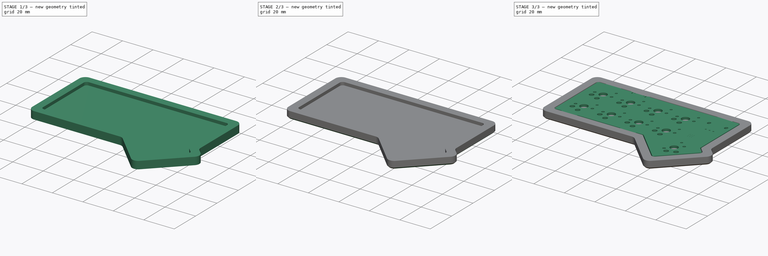
[diagram: build sequence overview — one tinted view per stage of 3, left to right]
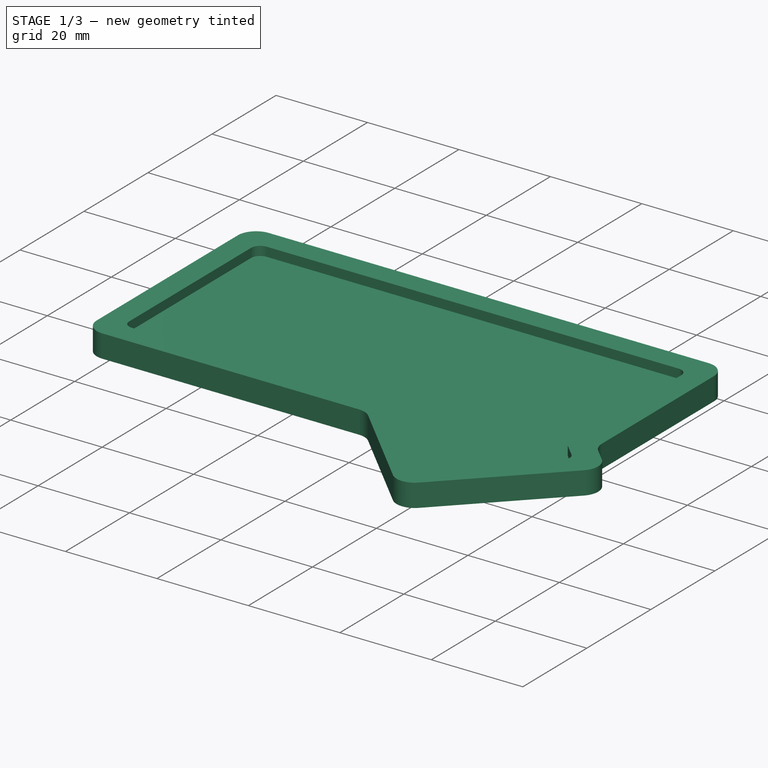
[diagram: stage 1 of 3 — iso view after this stage's code; geometry added in this stage tinted green]
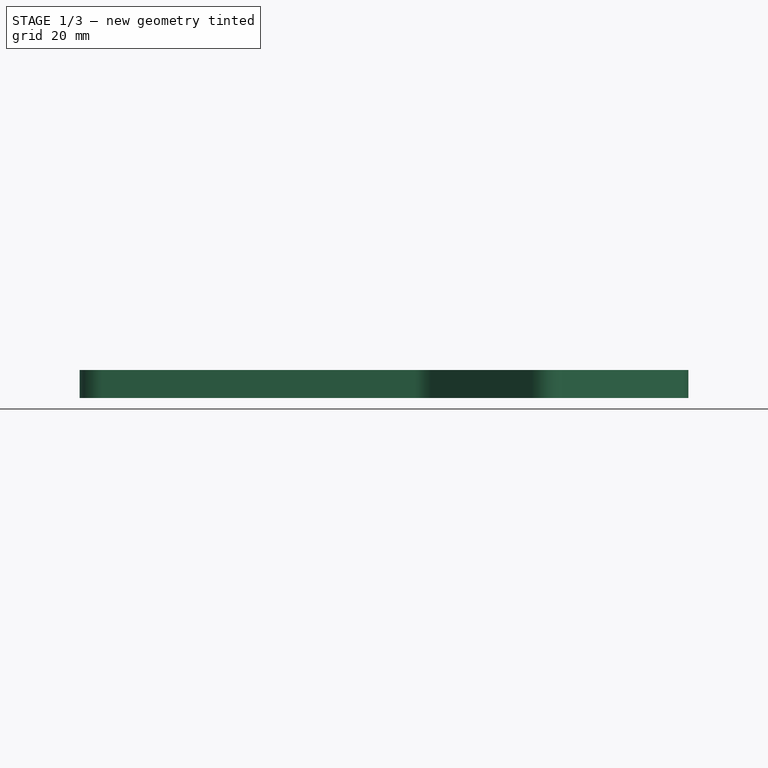
[diagram: stage 1 of 3 — front view after this stage's code; geometry added in this stage tinted green]
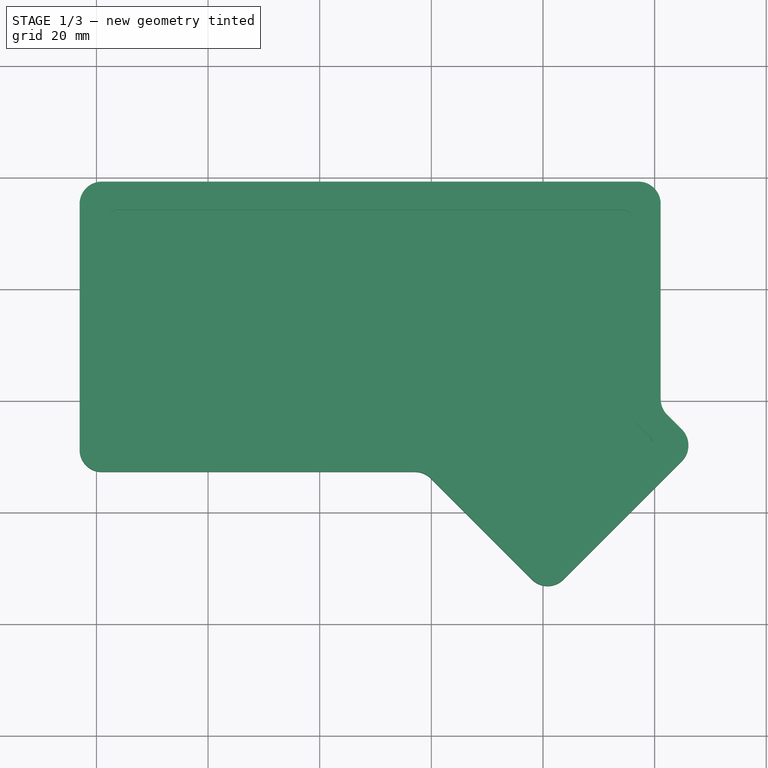
[diagram: stage 1 of 3 — top view after this stage's code; geometry added in this stage tinted green]
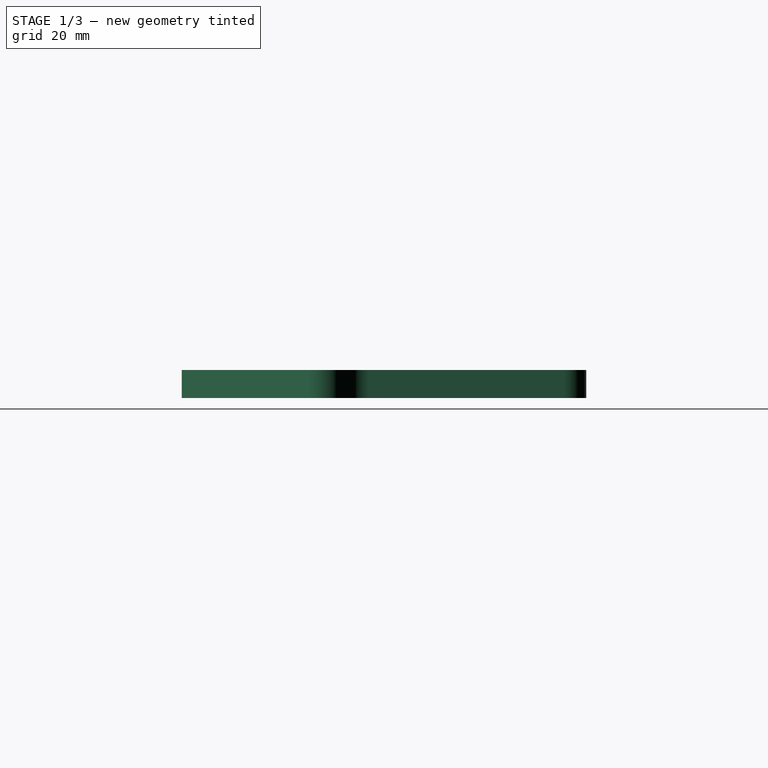
[diagram: stage 1 of 3 — right view after this stage's code; geometry added in this stage tinted green]
FCSTD DOCUMENT  (FreeCAD 0.21R33771 (Git))
Label: 3d
License: All rights reserved
LicenseURL: http://en.wikipedia.org/wiki/All_rights_reserved
objects: App::Link×19, Part::Feature×9, Sketcher::SketchObject×5, App::Part×4, PartDesign::Pad×4, PartDesign::Body×2, PartDesign::CoordinateSystem×1, PartDesign::Chamfer×1
note: 27 computed .brp shape members not serialized (recipe doc carries the construction recipe); baked Part::Feature solids carry a one-line shape summary decoded from their .brp

FEATURE [PartDesign::Body] Body
  Group = -> [Sketch,Pad,Sketch001,Pad001]
  Origin = -> Origin007
  Tip = -> Pad001
FEATURE [App::Part] Board_f0d5  label="main"
  Group = -> [Local_CS_f0d5,Board_Geoms_f0d5,Step_Models_f0d5,Body]
  Origin = -> Origin001
FEATURE [Sketcher::SketchObject] Sketch002
  FullyConstrained = true
  MapMode = 5
  Support = -> [XY_Plane008]
  sketch-geometry (32):
    g0: LineSegment StartX=14.0884 StartY=34.2536 StartZ=0 EndX=-76.0159 EndY=34.2536 EndZ=0
    g1: LineSegment StartX=-78.0159 StartY=32.2536 StartZ=0 EndX=-78.0159 EndY=-5.74598 EndZ=0
    g2: LineSegment StartX=-76.0159 StartY=-7.74598 StartZ=0 EndX=-20.0159 EndY=-7.74598 EndZ=0
    g3: LineSegment StartX=-18.6017 StartY=-8.33177 StartZ=0 EndX=-0.570487 EndY=-26.363 EndZ=0
    g4: LineSegment StartX=2.25794 StartY=-26.363 StartZ=0 EndX=19.2285 EndY=-9.39243 EndZ=0
    g5: LineSegment StartX=19.2285 StartY=-6.564 StartZ=0 EndX=16.6742 EndY=-4.00969 EndZ=0
    g6: LineSegment StartX=16.0884 StartY=-2.59548 StartZ=0 EndX=16.0884 EndY=32.2536 EndZ=0
    g7: LineSegment StartX=17.0884 StartY=39.2536 StartZ=0 EndX=-79.0159 EndY=39.2536 EndZ=0
    g8: LineSegment StartX=-83.0159 StartY=35.2536 StartZ=0 EndX=-83.0159 EndY=-8.74598 EndZ=0
    g9: LineSegment StartX=-79.0159 StartY=-12.746 StartZ=0 EndX=-22.9154 EndY=-12.746 EndZ=0
    g10: LineSegment StartX=-20.087 StartY=-13.9176 StartZ=0 EndX=-1.9847 EndY=-32.0198 EndZ=0
    g11: LineSegment StartX=3.67215 StartY=-32.0198 StartZ=0 EndX=24.8854 EndY=-10.8066 EndZ=0
    g12: LineSegment StartX=24.8854 StartY=-5.14979 StartZ=0 EndX=22.26 EndY=-2.52441 EndZ=0
    g13: LineSegment StartX=21.0884 StartY=0.304015 StartZ=0 EndX=21.0884 EndY=35.2536 EndZ=0
    g14: GeomPoint X=15.0882 Y=33.7536 Z=0
    g15: ArcOfCircle CenterX=14.0884 CenterY=32.2536 CenterZ=0 NormalX=0 NormalY=0 NormalZ=1 AngleXU=0 Radius=2 StartAngle=0 EndAngle=1.5708
    g16: ArcOfCircle CenterX=17.0884 CenterY=35.2536 CenterZ=0 NormalX=0 NormalY=0 NormalZ=1 AngleXU=0 Radius=4 StartAngle=5e-16 EndAngle=1.5708
    g17: GeomPoint X=15.5884 Y=33.254 Z=0
    g18: ArcOfCircle CenterX=-79.0159 CenterY=35.2536 CenterZ=0 NormalX=0 NormalY=0 NormalZ=1 AngleXU=0 Radius=4 StartAngle=1.5708 EndAngle=3.14159
    g19: ArcOfCircle CenterX=-79.0159 CenterY=-8.74598 CenterZ=0 NormalX=0 NormalY=0 NormalZ=1 AngleXU=0 Radius=4 StartAngle=3.14159 EndAngle=4.71239
    g20: ArcOfCircle CenterX=0.843727 CenterY=-29.1914 CenterZ=0 NormalX=0 NormalY=0 NormalZ=1 AngleXU=0 Radius=4 StartAngle=3.92699 EndAngle=5.49779
    g21: ArcOfCircle CenterX=22.0569 CenterY=-7.97822 CenterZ=0 NormalX=0 NormalY=0 NormalZ=1 AngleXU=0 Radius=4 StartAngle=5.49779 EndAngle=7.06858
    g22: ArcOfCircle CenterX=25.0884 CenterY=0.304015 CenterZ=0 NormalX=0 NormalY=0 NormalZ=1 AngleXU=0 Radius=4 StartAngle=3.14159 EndAngle=3.92699
    g23: ArcOfCircle CenterX=-22.9154 CenterY=-16.746 CenterZ=0 NormalX=0 NormalY=0 NormalZ=1 AngleXU=0 Radius=4 StartAngle=0.785398 EndAngle=1.5708
    g24: ArcOfCircle CenterX=-76.0159 CenterY=32.2536 CenterZ=0 NormalX=0 NormalY=0 NormalZ=1 AngleXU=0 Radius=2 StartAngle=1.5708 EndAngle=3.14159
    g25: GeomPoint X=-77.5159 Y=33.257 Z=0
    g26: ArcOfCircle CenterX=-76.0159 CenterY=-5.74598 CenterZ=0 NormalX=0 NormalY=0 NormalZ=1 AngleXU=0 Radius=2 StartAngle=3.14159 EndAngle=4.71239
    g27: GeomPoint X=-77.0185 Y=-7.24598 Z=0
    g28: ArcOfCircle CenterX=-20.0159 CenterY=-9.74598 CenterZ=0 NormalX=0 NormalY=0 NormalZ=1 AngleXU=0 Radius=2 StartAngle=0.785398 EndAngle=1.5708
    g29: ArcOfCircle CenterX=0.843727 CenterY=-24.9488 CenterZ=0 NormalX=0 NormalY=0 NormalZ=1 AngleXU=0 Radius=2 StartAngle=3.92699 EndAngle=5.49779
    g30: ArcOfCircle CenterX=17.8143 CenterY=-7.97822 CenterZ=0 NormalX=0 NormalY=0 NormalZ=1 AngleXU=0 Radius=2 StartAngle=5.49779 EndAngle=7.06858
    g31: ArcOfCircle CenterX=18.0884 CenterY=-2.59548 CenterZ=0 NormalX=0 NormalY=0 NormalZ=1 AngleXU=0 Radius=2 StartAngle=3.14159 EndAngle=3.92699
  constraints (78):
    c: Horizontal(g0)
    c: Vertical(g1)
    c: Horizontal(g2)
    c: Vertical(g6)
    c: Horizontal(g7)
    c: Vertical(g8)
    c: Horizontal(g9)
    c: Parallel(g13,g6)
    c: Parallel(g12,g5)
    c: Parallel(g4,g11)
    c: Parallel(g10,g3)
    c: Angle(g12,g13) = 2.35619
    c: Perpendicular(g5,g4)
    c: Perpendicular(g3,g4)
    c: DistanceX(g14) = 15.0882
    c: DistanceY(g14) = 33.7536
    c: Distance(g14,g0) = 0.5
    c: Tangent(g0,g15) = -1.5708
    c: Tangent(g6,g15) = -1.5708
    c: Radius(g15) = 2
    c: Tangent(g7,g16) = -1.5708
    c: Tangent(g13,g16) = -1.5708
    c: Radius(g16) = 4
    c: Distance(g0,g7) = 5
    c: DistanceX(g17) = 15.5884
    c: DistanceY(g17) = 33.254
    c: Distance(g17,g6) = 0.5
    c: Distance(g6,g13) = 5
    c: Tangent(g7,g18) = -1.5708
    c: Tangent(g8,g18) = -1.5708
    c: Tangent(g8,g19) = -1.5708
    c: Tangent(g9,g19) = -1.5708
    c: Tangent(g10,g20) = -1.5708
    c: Tangent(g11,g20) = -1.5708
    c: Tangent(g11,g21) = -1.5708
    c: Tangent(g12,g21) = -1.5708
    c: Radius(g18) = 4
    c: Radius(g19) = 4
    c: Radius(g20) = 4
    c: Radius(g21) = 4
    c: Tangent(g12,g22) = 1.5708
    c: Tangent(g13,g22) = 1.5708
    c: Tangent(g9,g23) = 1.5708
    c: Tangent(g10,g23) = 1.5708
    c: Radius(g22) = 4
    c: Radius(g23) = 4
    c: Tangent(g0,g24) = -1.5708
    c: Tangent(g1,g24) = -1.5708
    c: Radius(g24) = 2
    c: Distance(g1,g8) = 5
    c: DistanceX(g25) = -77.5159
    c: DistanceY(g25) = 33.257
    c: Distance(g25,g1) = 0.5
    c: Tangent(g1,g26) = -1.5708
    c: Tangent(g2,g26) = -1.5708
    c: Radius(g26) = 2
    c: Distance(g2,g9) = 5
    c: DistanceX(g27) = -77.0185
    c: DistanceY(g27) = -7.24598
    c: Distance(g27,g2) = 0.5
    c: Tangent(g2,g28) = 1.5708
    c: Tangent(g3,g28) = 1.5708
    c: Radius(g28) = 2
    c: Tangent(g3,g29) = -1.5708
    c: Tangent(g4,g29) = -1.5708
    c: Tangent(g4,g30) = -1.5708
    c: Tangent(g5,g30) = -1.5708
    c: Tangent(g5,g31) = 1.5708
    c: Tangent(g6,g31) = 1.5708
    c: Radius(g31) = 2
    c: Radius(g30) = 2
    c: Radius(g29) = 2
    c: Distance(g3,g10) = 5
    c: Distance(g5,g12) = 5
    c: Distance(g4,g11) = 5
    c: Distance(g2) = 56
    c: Distance(g3) = 25.5
    c: Distance(g4) = 24
FEATURE [PartDesign::Pad] Pad002
  Direction = (0,0,1)
  Length = 2
  Length2 = 10
  Profile = -> Sketch002
  ReferenceAxis = -> Sketch002 [N_Axis]
  Reversed = true
  Type = 0
FEATURE [Sketcher::SketchObject] Sketch003
  ExternalGeometry = -> [Pad002]
  FullyConstrained = true
  MapMode = 5
  Placement = pos=(0,0,-2) rot=(1,0,0;3.14159rad)
  Support = -> [Pad002]
  sketch-geometry (14):
    g0: LineSegment StartX=-79.0159 StartY=12.746 StartZ=0 EndX=-22.9154 EndY=12.746 EndZ=0
    g1: LineSegment StartX=-20.087 StartY=13.9176 StartZ=0 EndX=-1.9847 EndY=32.0198 EndZ=0
    g2: LineSegment StartX=3.67215 StartY=32.0198 StartZ=0 EndX=24.8854 EndY=10.8066 EndZ=0
    g3: LineSegment StartX=24.8854 StartY=5.14979 StartZ=0 EndX=22.26 EndY=2.52441 EndZ=0
    g4: LineSegment StartX=21.0884 StartY=-0.304015 StartZ=0 EndX=21.0884 EndY=-35.2536 EndZ=0
    g5: LineSegment StartX=17.0884 StartY=-39.2536 StartZ=0 EndX=-79.0159 EndY=-39.2536 EndZ=0
    g6: LineSegment StartX=-83.0159 StartY=-35.2536 StartZ=0 EndX=-83.0159 EndY=8.74598 EndZ=0
    g7: ArcOfCircle CenterX=-79.0159 CenterY=8.74598 CenterZ=0 NormalX=0 NormalY=0 NormalZ=1 AngleXU=0 Radius=4 StartAngle=1.5708 EndAngle=3.14159
    g8: ArcOfCircle CenterX=-79.0159 CenterY=-35.2536 CenterZ=0 NormalX=0 NormalY=0 NormalZ=1 AngleXU=0 Radius=4 StartAngle=3.14159 EndAngle=4.71239
    g9: ArcOfCircle CenterX=17.0884 CenterY=-35.2536 CenterZ=0 NormalX=0 NormalY=0 NormalZ=1 AngleXU=0 Radius=4 StartAngle=4.71239 EndAngle=6.28319
    g10: ArcOfCircle CenterX=25.0884 CenterY=-0.304015 CenterZ=0 NormalX=0 NormalY=0 NormalZ=1 AngleXU=0 Radius=4 StartAngle=2.35619 EndAngle=3.14159
    g11: ArcOfCircle CenterX=22.0569 CenterY=7.97822 CenterZ=0 NormalX=0 NormalY=0 NormalZ=1 AngleXU=0 Radius=4 StartAngle=5.49779 EndAngle=7.06858
    g12: ArcOfCircle CenterX=0.843727 CenterY=29.1914 CenterZ=0 NormalX=0 NormalY=0 NormalZ=1 AngleXU=0 Radius=4 StartAngle=0.785398 EndAngle=2.35619
    g13: ArcOfCircle CenterX=-22.9154 CenterY=16.746 CenterZ=0 NormalX=0 NormalY=0 NormalZ=1 AngleXU=0 Radius=4 StartAngle=4.71239 EndAngle=5.49779
  constraints (29):
    c: Horizontal(g0)
    c: Vertical(g4)
    c: Horizontal(g5)
    c: Vertical(g6)
    c: Tangent(g0,g7) = 1.5708
    c: Tangent(g6,g7) = 1.5708
    c: Tangent(g5,g8) = 1.5708
    c: Tangent(g6,g8) = 1.5708
    c: Tangent(g4,g9) = 1.5708
    c: Tangent(g5,g9) = 1.5708
    c: Tangent(g3,g10) = -1.5708
    c: Tangent(g4,g10) = -1.5708
    c: Tangent(g2,g11) = 1.5708
    c: Tangent(g3,g11) = 1.5708
    c: Tangent(g1,g12) = 1.5708
    c: Tangent(g2,g12) = 1.5708
    c: Tangent(g0,g13) = -1.5708
    c: Tangent(g1,g13) = -1.5708
    c: Radius(g13) = 4
    c: Radius(g7) = 4
    c: Radius(g9) = 4
    c: Radius(g10) = 4
    c: Radius(g11) = 4
    c: Coincident(g3,g-9)
    c: Coincident(g-9,g3)
    c: Coincident(g2,g-3)
    c: Coincident(g1,g-4)
    c: Coincident(g6,g-6)
    c: Coincident(g5,g-7)
FEATURE [PartDesign::Pad] Pad003
  BaseFeature = -> Pad002
  Direction = (0,0,-1)
  Length = 3
  Length2 = 10
  Profile = -> Sketch003
  ReferenceAxis = -> Sketch003 [N_Axis]
  Type = 0
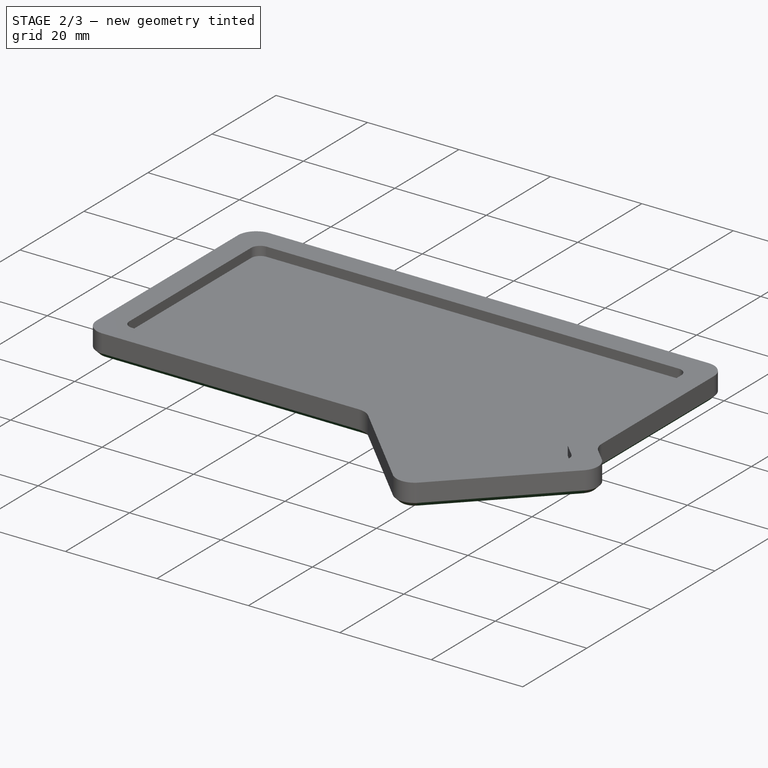
[diagram: stage 2 of 3 — iso view after this stage's code; geometry added in this stage tinted green]
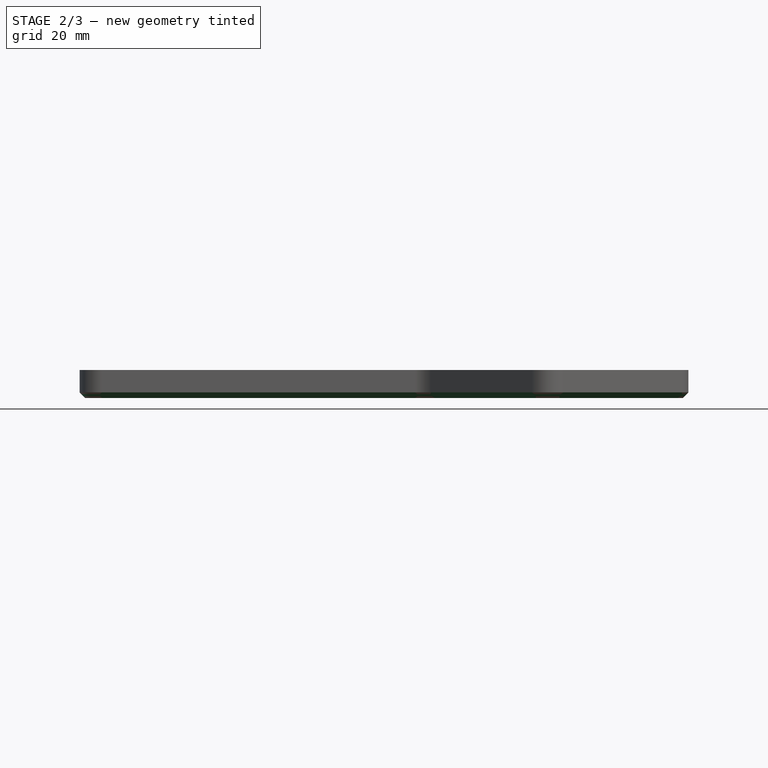
[diagram: stage 2 of 3 — front view after this stage's code; geometry added in this stage tinted green]
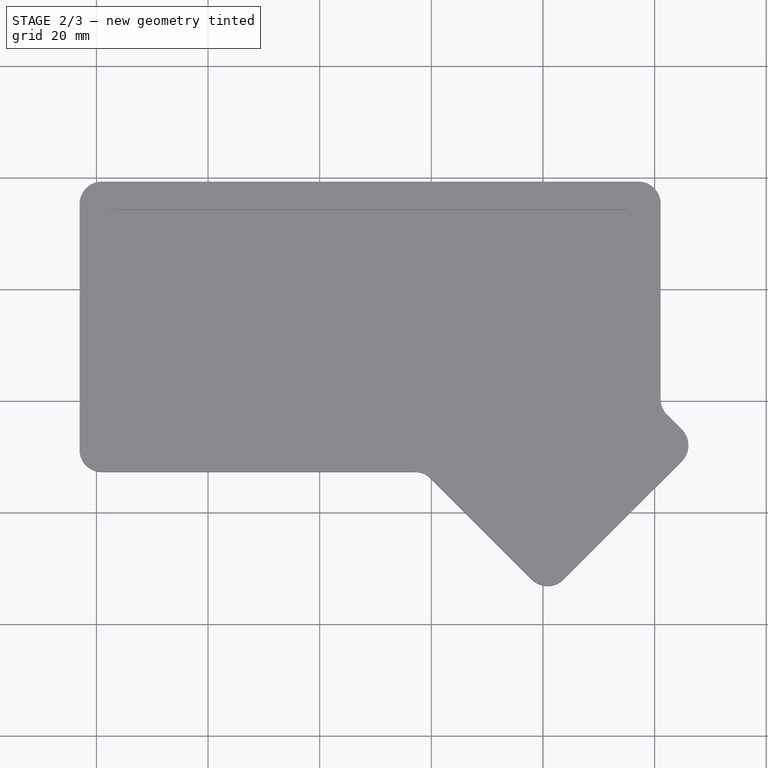
[diagram: stage 2 of 3 — top view after this stage's code; geometry added in this stage tinted green]
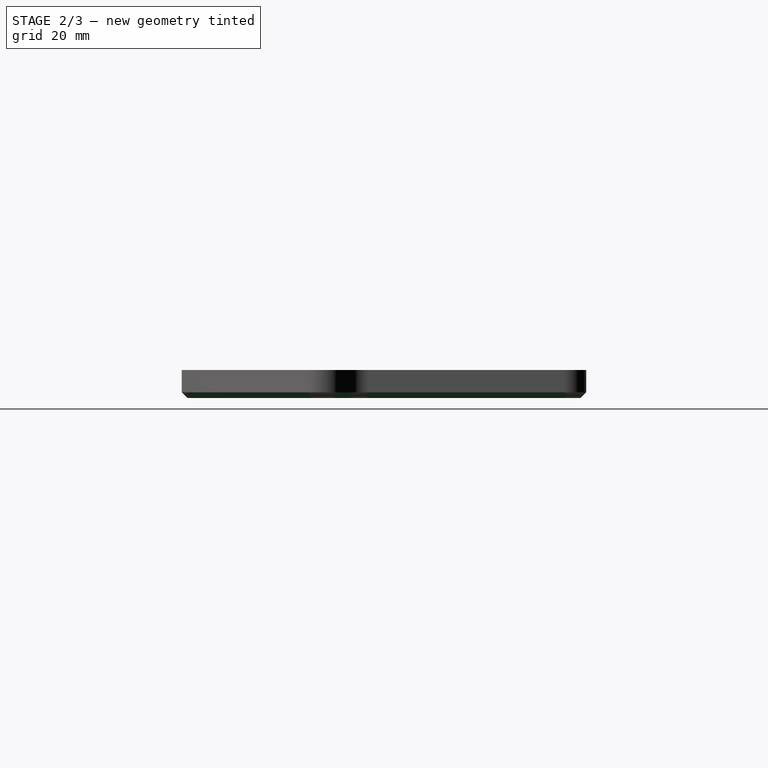
[diagram: stage 2 of 3 — right view after this stage's code; geometry added in this stage tinted green]
FEATURE [PartDesign::Chamfer] Chamfer
  Angle = 45
  Base = -> Pad003 [Face33]
  BaseFeature = -> Pad003
  ChamferType = 0
  FlipDirection = false
  Size = 1
  Size2 = 1
  SupportTransform = false
  UseAllEdges = false
FEATURE [PartDesign::Body] Body001
  Group = -> [Sketch002,Pad002,Sketch003,Pad003,Chamfer]
  Origin = -> Origin008
  Placement = pos=(0,0,-2.6) rot=(0,0,1;0rad)
  Tip = -> Chamfer
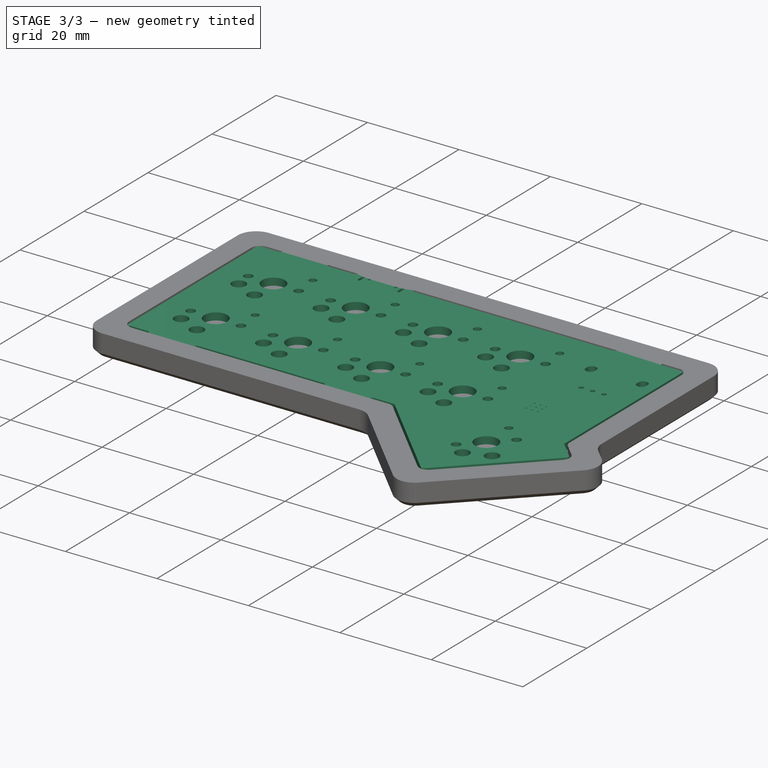
[diagram: stage 3 of 3 — iso view after this stage's code; geometry added in this stage tinted green]
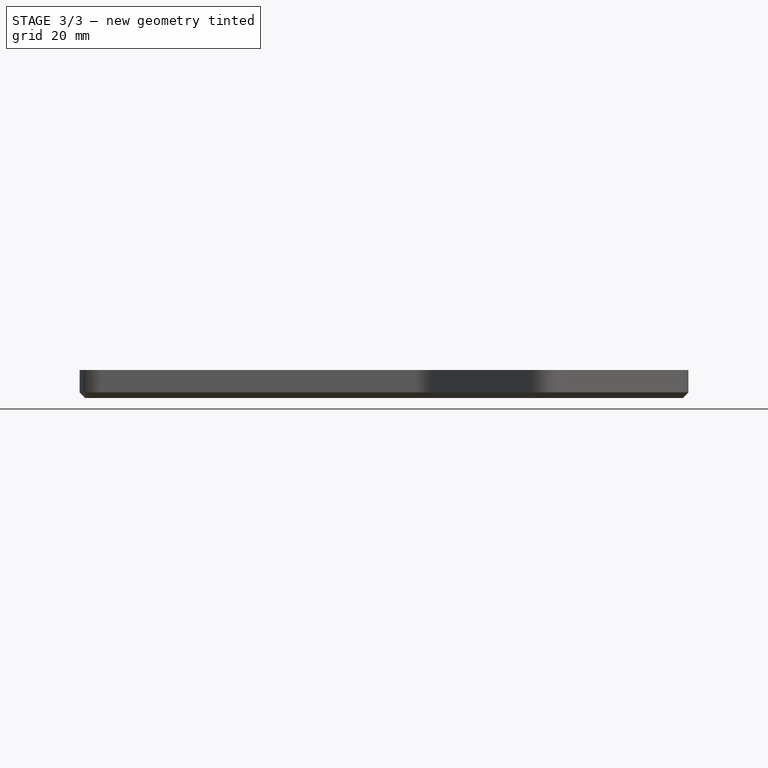
[diagram: stage 3 of 3 — front view after this stage's code; geometry added in this stage tinted green]
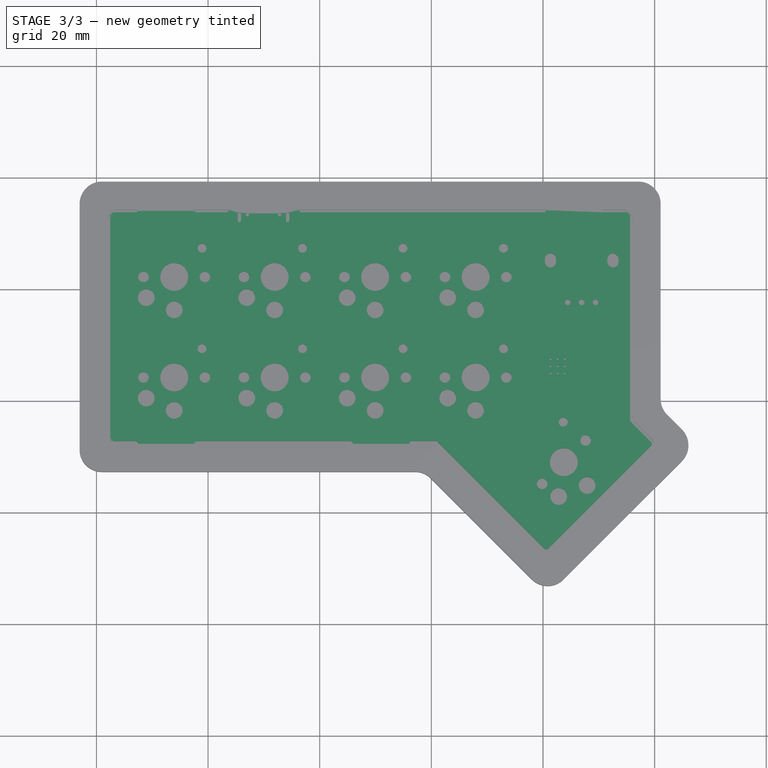
[diagram: stage 3 of 3 — top view after this stage's code; geometry added in this stage tinted green]
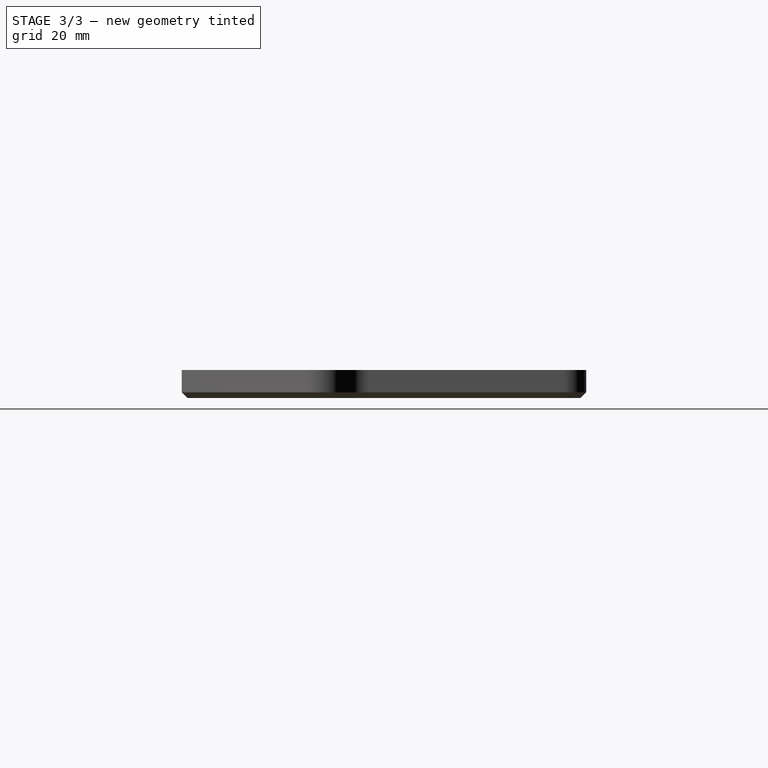
[diagram: stage 3 of 3 — right view after this stage's code; geometry added in this stage tinted green]
FEATURE [PartDesign::CoordinateSystem] Local_CS_f0d5
  AttacherType = Attacher::AttachEngine3D
  MapMode = 2
  Support = -> [X_Axis001]
FEATURE [Part::Feature] Pcb_f0d5
  Placement = pos=(-107.562,58.18,0) rot=(0,0,1;0rad)
  shape: bbox 97.01 x 65.84 x 1.6 mm, 159 faces (baked)
FEATURE [Part::Feature] Shape  label="C13_C_0402_1005Metric_20f9ff56d14c"
  Placement = pos=(-4.8,9.6175,-1.6) rot=(0.707107,0.707107,0;3.14159rad)
  shape: bbox 0.5 x 1 x 0.5 mm, 28 faces (baked)
FEATURE [Part::Feature] Shape001  label="R5_R_0603_1608Metric_0f83e2f0beb8"
  Placement = pos=(-6.375,7.8175,-1.6) rot=(1,0,0;3.14159rad)
  shape: bbox 1.6 x 0.8 x 0.45 mm, 26 faces (baked)
FEATURE [Part::Feature] Shape002  label="R1_R_0402_1005Metric_12533a4fa0e3"
  Placement = pos=(9.41,3.58,-1.6) rot=(0,1,0;3.14159rad)
  shape: bbox 1 x 0.5 x 0.35 mm, 26 faces (baked)
FEATURE [Part::Feature] Shape003  label="Y1_Crystal_SMD_3225-4Pin_3.2x2.5mm_d7bcd2856118"
  Placement = pos=(6.65,12.68,-1.6) rot=(0.707107,0.707107,0;3.14159rad)
  shape: bbox 2.501 x 3.2 x 0.64 mm, 28 faces (baked)
FEATURE [Part::Feature] Shape004  label="U2_QFN-56-1EP_7x7mm_Pitch0.4mm_ac75fd3972f8"
  Placement = pos=(2.6375,6.18,-1.6) rot=(0.707107,-0.707107,0;3.14159rad)
  shape: bbox 7 x 7 x 0.92 mm, 350 faces (baked)
FEATURE [App::Link] R1_R_0402_1005Metric_12533a4fa0e3_ln_  label="R4_R_0402_1005Metric_2841b6465669"
  LinkPlacement = pos=(-9.7675,30.38,-1.6) rot=(1,0,0;3.14159rad)
  LinkedObject = -> Shape002
  Placement = pos=(-9.7675,30.38,-1.6) rot=(1,0,0;3.14159rad)
FEATURE [App::Link] C13_C_0402_1005Metric_20f9ff56d14c_ln_  label="C11_C_0402_1005Metric_a6375dfa320b"
  LinkPlacement = pos=(2e-16,0,-1.6) rot=(0.707107,-0.707107,0;3.14159rad)
  LinkedObject = -> Shape
  Placement = pos=(2e-16,0,-1.6) rot=(0.707107,-0.707107,0;3.14159rad)
FEATURE [App::Link] R1_R_0402_1005Metric_12533a4fa0e3_ln_001  label="R7_R_0402_1005Metric_3266732ec701"
  LinkPlacement = pos=(-21.1675,30.38,-1.6) rot=(0,1,0;3.14159rad)
  LinkedObject = -> Shape002
  Placement = pos=(-21.1675,30.38,-1.6) rot=(0,1,0;3.14159rad)
FEATURE [App::Link] C13_C_0402_1005Metric_20f9ff56d14c_ln_001  label="C10_C_0402_1005Metric_80ebf982a467"
  LinkPlacement = pos=(3.6,0,-1.6) rot=(0.707107,-0.707107,0;3.14159rad)
  LinkedObject = -> Shape
  Placement = pos=(3.6,0,-1.6) rot=(0.707107,-0.707107,0;3.14159rad)
FEATURE [App::Link] C13_C_0402_1005Metric_20f9ff56d14c_ln_002  label="C2_C_0402_1005Metric_5e06b70b92cb"
  LinkPlacement = pos=(9.38,4.78,-1.6) rot=(1,0,0;3.14159rad)
  LinkedObject = -> Shape
  Placement = pos=(9.38,4.78,-1.6) rot=(1,0,0;3.14159rad)
FEATURE [Part::Feature] Shape005  label="C16_C_0603_1608Metric_1c90a27a244a"
  Placement = pos=(9.5,14.555,-1.6) rot=(0.707107,-0.707107,0;3.14159rad)
  shape: bbox 0.8 x 1.6 x 0.8 mm, 28 faces (baked)
FEATURE [App::Link] R1_R_0402_1005Metric_12533a4fa0e3_ln_002  label="R2_R_0402_1005Metric_1c3d2e657c66"
  LinkPlacement = pos=(-46.3525,29.955,-1.6) rot=(0,1,0;3.14159rad)
  LinkedObject = -> Shape002
  Placement = pos=(-46.3525,29.955,-1.6) rot=(0,1,0;3.14159rad)
FEATURE [App::Link] C16_C_0603_1608Metric_1c90a27a244a_ln_  label="C15_C_0603_1608Metric_2704d7235b1f"
  LinkPlacement = pos=(9.5,10.805,-1.6) rot=(0.707107,0.707107,0;3.14159rad)
  LinkedObject = -> Shape005
  Placement = pos=(9.5,10.805,-1.6) rot=(0.707107,0.707107,0;3.14159rad)
FEATURE [App::Link] C13_C_0402_1005Metric_20f9ff56d14c_ln_003  label="C12_C_0402_1005Metric_f4c0c0832f67"
  LinkPlacement = pos=(-1,0.02,-1.6) rot=(0.707107,-0.707107,0;3.14159rad)
  LinkedObject = -> Shape
  Placement = pos=(-1,0.02,-1.6) rot=(0.707107,-0.707107,0;3.14159rad)
FEATURE [App::Link] C13_C_0402_1005Metric_20f9ff56d14c_ln_004  label="C3_C_0402_1005Metric_e55fab625e3b"
  LinkPlacement = pos=(-3.18,4.6175,-1.6) rot=(0,1,0;3.14159rad)
  LinkedObject = -> Shape
  Placement = pos=(-3.18,4.6175,-1.6) rot=(0,1,0;3.14159rad)
FEATURE [Part::Feature] Shape006  label="C5_C_0805_2012Metric_7a493f426a25"
  Placement = pos=(-40.6625,30.43,-1.6) rot=(0.707107,-0.707107,0;3.14159rad)
  shape: bbox 1.25 x 2 x 1.25 mm, 28 faces (baked)
FEATURE [App::Link] R5_R_0603_1608Metric_0f83e2f0beb8_ln_  label="R6_R_0603_1608Metric_adbd3915f984"
  LinkPlacement = pos=(-6.375,6.18,-1.6) rot=(1,0,0;3.14159rad)
  LinkedObject = -> Shape001
  Placement = pos=(-6.375,6.18,-1.6) rot=(1,0,0;3.14159rad)
FEATURE [App::Link] C13_C_0402_1005Metric_20f9ff56d14c_ln_005  label="C1_C_0402_1005Metric_6a3204aa49d7"
  LinkPlacement = pos=(-3.8,9.6175,-1.6) rot=(0.707107,0.707107,0;3.14159rad)
  LinkedObject = -> Shape
  Placement = pos=(-3.8,9.6175,-1.6) rot=(0.707107,0.707107,0;3.14159rad)
FEATURE [App::Link] C5_C_0805_2012Metric_7a493f426a25_ln_  label="C4_C_0805_2012Metric_48589f720c60"
  LinkPlacement = pos=(-40.7625,24.98,-1.6) rot=(0.707107,0.707107,0;3.14159rad)
  LinkedObject = -> Shape006
  Placement = pos=(-40.7625,24.98,-1.6) rot=(0.707107,0.707107,0;3.14159rad)
FEATURE [App::Link] C13_C_0402_1005Metric_20f9ff56d14c_ln_006  label="C7_C_0402_1005Metric_ae2c81c30776"
  LinkPlacement = pos=(-2.1,2.82,-1.6) rot=(0.707107,-0.707107,0;3.14159rad)
  LinkedObject = -> Shape
  Placement = pos=(-2.1,2.82,-1.6) rot=(0.707107,-0.707107,0;3.14159rad)
FEATURE [App::Link] C13_C_0402_1005Metric_20f9ff56d14c_ln_007  label="C8_C_0402_1005Metric_bf1b17064834"
  LinkPlacement = pos=(3.4,11.38,-1.6) rot=(0.707107,0.707107,0;3.14159rad)
  LinkedObject = -> Shape
  Placement = pos=(3.4,11.38,-1.6) rot=(0.707107,0.707107,0;3.14159rad)
FEATURE [App::Link] C13_C_0402_1005Metric_20f9ff56d14c_ln_008  label="C6_C_0402_1005Metric_a586c313aba7"
  LinkPlacement = pos=(2e-16,11.38,-1.6) rot=(0.707107,0.707107,0;3.14159rad)
  LinkedObject = -> Shape
  Placement = pos=(2e-16,11.38,-1.6) rot=(0.707107,0.707107,0;3.14159rad)
FEATURE [App::Link] R1_R_0402_1005Metric_12533a4fa0e3_ln_003  label="R8_R_0402_1005Metric_ef073f3bea57"
  LinkPlacement = pos=(11.2,10.28,-1.6) rot=(0.707107,0.707107,0;3.14159rad)
  LinkedObject = -> Shape002
  Placement = pos=(11.2,10.28,-1.6) rot=(0.707107,0.707107,0;3.14159rad)
FEATURE [App::Link] R1_R_0402_1005Metric_12533a4fa0e3_ln_004  label="R3_R_0402_1005Metric_e84c450cb5dd"
  LinkPlacement = pos=(-53.7725,29.855,-1.6) rot=(1,0,0;3.14159rad)
  LinkedObject = -> Shape002
  Placement = pos=(-53.7725,29.855,-1.6) rot=(1,0,0;3.14159rad)
FEATURE [Part::Feature] Shape007  label="U1_SOT_223_c098961c0a0d"
  Placement = pos=(-35.9625,27.68,-1.6) rot=(0.707107,0.707107,0;3.14159rad)
  shape: bbox 6.5 x 7 x 1.7 mm, 78 faces (baked)
FEATURE [App::Link] C13_C_0402_1005Metric_20f9ff56d14c_ln_009  label="C14_C_0402_1005Metric_bee503740164"
  LinkPlacement = pos=(-23.1775,30.385,-1.6) rot=(0,1,0;3.14159rad)
  LinkedObject = -> Shape
  Placement = pos=(-23.1775,30.385,-1.6) rot=(0,1,0;3.14159rad)
FEATURE [App::Link] C13_C_0402_1005Metric_20f9ff56d14c_ln_010  label="C9_C_0402_1005Metric_9f24d76d1d7a"
  LinkPlacement = pos=(9.38,5.98,-1.6) rot=(1,0,0;3.14159rad)
  LinkedObject = -> Shape
  Placement = pos=(9.38,5.98,-1.6) rot=(1,0,0;3.14159rad)
FEATURE [App::Part] Bot_f0d5
  Group = -> [Shape,Shape001,Shape002,Shape003,Shape004,R1_R_0402_1005Metric_12533a4fa0e3_ln_,C13_C_0402_1005Metric_20f9ff56d14c_ln_,R1_R_0402_1005Metric_12533a4fa0e3_ln_001,C13_C_0402_1005Metric_20f9ff56d14c_ln_001,C13_C_0402_1005Metric_20f9ff56d14c_ln_002,Shape005,R1_R_0402_1005Metric_12533a4fa0e3_ln_002,C16_C_0603_1608Metric_1c90a27a244a_ln_,C13_C_0402_1005Metric_20f9ff56d14c_ln_003,+13 more]
  Origin = -> Origin004
FEATURE [App::Part] Step_Models_f0d5
  Group = -> [Bot_f0d5]
  Origin = -> Origin002
FEATURE [Sketcher::SketchObject] Sketch  label="Sketch_converted"
  FullyConstrained = false
  Placement = pos=(0,0,-1.6) rot=(0,0,1;3.14159rad)
  sketch-geometry (157):
    g0: LineSegment StartX=63.0185 StartY=12.2448 StartZ=0 EndX=72.0185 EndY=12.2448 EndZ=0
    g1: ArcOfCircle CenterX=72.0185 CenterY=11.7448 CenterZ=0 NormalX=0 NormalY=0 NormalZ=1 AngleXU=1.57079 Radius=0.500001 StartAngle=4.71239 EndAngle=6.28319
    g2: LineSegment StartX=72.5185 StartY=11.7448 StartZ=0 EndX=72.5185 EndY=7.74485 EndZ=0
    g3: ArcOfCircle CenterX=73.0185 CenterY=7.74485 CenterZ=0 NormalX=0 NormalY=0 NormalZ=1 AngleXU=-1.5708 Radius=0.500001 StartAngle=4.71239 EndAngle=6.28319
    g4: LineSegment StartX=73.0185 StartY=7.24485 StartZ=0 EndX=77.0185 EndY=7.24485 EndZ=0
    g5: ArcOfCircle CenterX=77.0185 CenterY=6.74485 CenterZ=0 NormalX=0 NormalY=0 NormalZ=1 AngleXU=1.57079 Radius=0.500001 StartAngle=4.71239 EndAngle=6.28319
    g6: LineSegment StartX=77.5185 StartY=6.74485 StartZ=0 EndX=77.5185 EndY=-33.2536 EndZ=0
    g7: ArcOfCircle CenterX=77.0185 CenterY=-33.2536 CenterZ=0 NormalX=0 NormalY=0 NormalZ=1 AngleXU=-2.66714e-06 Radius=0.500001 StartAngle=4.71239 EndAngle=6.28319
    g8: LineSegment StartX=77.0185 StartY=-33.7536 StartZ=0 EndX=73.0185 EndY=-33.7536 EndZ=0
    g9: ArcOfCircle CenterX=73.0185 CenterY=-34.2536 CenterZ=0 NormalX=0 NormalY=0 NormalZ=1 AngleXU=3.14159 Radius=0.500001 StartAngle=4.71239 EndAngle=6.28319
    g10: LineSegment StartX=72.5185 StartY=-34.2536 StartZ=0 EndX=72.5185 EndY=-38.2536 EndZ=0
    g11: ArcOfCircle CenterX=72.0185 CenterY=-38.2536 CenterZ=0 NormalX=0 NormalY=0 NormalZ=1 AngleXU=-2.66714e-06 Radius=0.500001 StartAngle=4.71239 EndAngle=6.28319
    g12: LineSegment StartX=72.0185 StartY=-38.7536 StartZ=0 EndX=63.0185 EndY=-38.7536 EndZ=0
    g13: ArcOfCircle CenterX=63.0185 CenterY=-38.2536 CenterZ=0 NormalX=0 NormalY=0 NormalZ=1 AngleXU=-1.5708 Radius=0.500001 StartAngle=4.71239 EndAngle=6.28319
    g14: LineSegment StartX=62.5185 StartY=-38.2536 StartZ=0 EndX=62.5185 EndY=-34.2536 EndZ=0
    g15: ArcOfCircle CenterX=62.0185 CenterY=-34.2536 CenterZ=0 NormalX=0 NormalY=0 NormalZ=1 AngleXU=1.57079 Radius=0.500001 StartAngle=4.71239 EndAngle=6.28319
    g16: LineSegment StartX=62.0185 StartY=-33.7536 StartZ=0 EndX=56.7856 EndY=-33.7536 EndZ=0
    g17: ArcOfCircle CenterX=56.7856 CenterY=-34.2536 CenterZ=0 NormalX=0 NormalY=0 NormalZ=1 AngleXU=3.14159 Radius=0.500001 StartAngle=4.71239 EndAngle=6.28319
    g18: LineSegment StartX=56.2856 StartY=-34.2536 StartZ=0 EndX=56.2856 EndY=-38.7036 EndZ=0
    g19: ArcOfCircle CenterX=55.7856 CenterY=-38.7036 CenterZ=0 NormalX=0 NormalY=0 NormalZ=1 AngleXU=-2.66714e-06 Radius=0.500001 StartAngle=4.71239 EndAngle=6.28319
    g20: LineSegment StartX=55.7856 StartY=-39.2036 StartZ=0 EndX=44.2464 EndY=-39.2036 EndZ=0
    g21: ArcOfCircle CenterX=44.2464 CenterY=-38.7036 CenterZ=0 NormalX=0 NormalY=0 NormalZ=1 AngleXU=-1.5708 Radius=0.500001 StartAngle=4.71239 EndAngle=6.28319
    g22: LineSegment StartX=43.7464 StartY=-38.7036 StartZ=0 EndX=43.7464 EndY=-34.2536 EndZ=0
    g23: ArcOfCircle CenterX=43.2464 CenterY=-34.2536 CenterZ=0 NormalX=0 NormalY=0 NormalZ=1 AngleXU=1.57079 Radius=0.500001 StartAngle=4.71239 EndAngle=6.28319
    g24: LineSegment StartX=43.2464 StartY=-33.7536 StartZ=0 EndX=-0.088353 EndY=-33.7536 EndZ=0
    g25: ArcOfCircle CenterX=-0.0883517 CenterY=-34.2536 CenterZ=0 NormalX=0 NormalY=0 NormalZ=1 AngleXU=3.14159 Radius=0.500001 StartAngle=4.71239 EndAngle=6.28319
    g26: LineSegment StartX=-0.588353 StartY=-34.2536 StartZ=0 EndX=-0.588353 EndY=-38.2536 EndZ=0
    g27: ArcOfCircle CenterX=-1.08835 CenterY=-38.2536 CenterZ=0 NormalX=0 NormalY=0 NormalZ=1 AngleXU=-2.66714e-06 Radius=0.500001 StartAngle=4.71239 EndAngle=6.28319
    g28: LineSegment StartX=-1.08835 StartY=-38.7536 StartZ=0 EndX=-10.0884 EndY=-38.7536 EndZ=0
    g29: ArcOfCircle CenterX=-10.0884 CenterY=-38.2536 CenterZ=0 NormalX=0 NormalY=0 NormalZ=1 AngleXU=-1.5708 Radius=0.500001 StartAngle=4.71239 EndAngle=6.28319
    g30: LineSegment StartX=-10.5884 StartY=-38.2536 StartZ=0 EndX=-10.5884 EndY=-33.7536 EndZ=0
    g31: LineSegment StartX=-10.5884 StartY=-33.7536 StartZ=0 EndX=-15.0884 EndY=-33.7536 EndZ=0
    g32: ArcOfCircle CenterX=-15.0884 CenterY=-33.2536 CenterZ=0 NormalX=0 NormalY=0 NormalZ=1 AngleXU=-1.5708 Radius=0.500001 StartAngle=4.71239 EndAngle=6.28319
    g33: LineSegment StartX=-15.5884 StartY=-33.2536 StartZ=0 EndX=-15.5884 EndY=3.43475 EndZ=0
    g34: ArcOfCircle CenterX=-16.0884 CenterY=3.43475 CenterZ=0 NormalX=0 NormalY=0 NormalZ=1 AngleXU=0.785355 Radius=0.499999 StartAngle=5.49783 EndAngle=6.28319
    g35: LineSegment StartX=-15.7348 StartY=3.78829 StartZ=0 EndX=-19.354 EndY=7.40834 EndZ=0
    g36: ArcOfCircle CenterX=-18.9874 CenterY=7.74825 CenterZ=0 NormalX=0 NormalY=0 NormalZ=1 AngleXU=-2.39408 Radius=0.499999 StartAngle=4.70887 EndAngle=6.28319
    g37: LineSegment StartX=-19.326 StartY=8.11613 StartZ=0 EndX=-0.955906 EndY=26.4866 EndZ=0
    g38: ArcOfCircle CenterX=-0.602353 CenterY=26.133 CenterZ=0 NormalX=0 NormalY=0 NormalZ=1 AngleXU=2.3562 Radius=0.499997 StartAngle=4.67101 EndAngle=6.28319
    g39: LineSegment StartX=-0.234482 StartY=26.4717 StartZ=0 EndX=18.8464 EndY=7.39129 EndZ=0
    g40: ArcOfCircle CenterX=19.1999 CenterY=7.74484 CenterZ=0 NormalX=0 NormalY=0 NormalZ=1 AngleXU=-1.57079 Radius=0.499992 StartAngle=5.49778 EndAngle=6.28319
    g41: LineSegment StartX=19.1999 StartY=7.24485 StartZ=0 EndX=23.4928 EndY=7.24485 EndZ=0
    g42: ArcOfCircle CenterX=23.4928 CenterY=7.74485 CenterZ=0 NormalX=0 NormalY=0 NormalZ=1 AngleXU=-2.66714e-06 Radius=0.500001 StartAngle=4.71239 EndAngle=6.28319
    g43: LineSegment StartX=23.9928 StartY=7.74485 StartZ=0 EndX=23.9928 EndY=11.7448 EndZ=0
    g44: ArcOfCircle CenterX=24.4928 CenterY=11.7448 CenterZ=0 NormalX=0 NormalY=0 NormalZ=1 AngleXU=3.14159 Radius=0.500001 StartAngle=4.71239 EndAngle=6.28319
    g45: LineSegment StartX=24.4928 StartY=12.2448 StartZ=0 EndX=33.4928 EndY=12.2448 EndZ=0
    g46: ArcOfCircle CenterX=33.4928 CenterY=11.7448 CenterZ=0 NormalX=0 NormalY=0 NormalZ=1 AngleXU=1.57079 Radius=0.500001 StartAngle=4.71239 EndAngle=6.28319
    g47: LineSegment StartX=33.9928 StartY=11.7448 StartZ=0 EndX=33.9928 EndY=7.74485 EndZ=0
    g48: ArcOfCircle CenterX=34.4928 CenterY=7.74485 CenterZ=0 NormalX=0 NormalY=0 NormalZ=1 AngleXU=-1.5708 Radius=0.500001 StartAngle=4.71239 EndAngle=6.28319
    g49: LineSegment StartX=34.4928 StartY=7.24485 StartZ=0 EndX=62.0185 EndY=7.24485 EndZ=0
    g50: ArcOfCircle CenterX=62.0185 CenterY=7.74485 CenterZ=0 NormalX=0 NormalY=0 NormalZ=1 AngleXU=-2.66714e-06 Radius=0.500001 StartAngle=4.71239 EndAngle=6.28319
    g51: LineSegment StartX=62.5185 StartY=7.74485 StartZ=0 EndX=62.5185 EndY=11.7448 EndZ=0
    g52: ArcOfCircle CenterX=63.0185 CenterY=11.7448 CenterZ=0 NormalX=0 NormalY=0 NormalZ=1 AngleXU=3.14159 Radius=0.500001 StartAngle=4.71239 EndAngle=6.28319
    g53: Circle CenterX=-2.81826 CenterY=17.1609 CenterZ=0 NormalX=0 NormalY=0 NormalZ=1 AngleXU=3.14159 Radius=1.5
    g54: Circle CenterX=-7.90943 CenterY=15.181 CenterZ=0 NormalX=0 NormalY=0 NormalZ=1 AngleXU=3.14159 Radius=1.5
    g55: Circle CenterX=0.151587 CenterY=14.8982 CenterZ=0 NormalX=0 NormalY=0 NormalZ=1 AngleXU=3.14159 Radius=0.95
    g56: Circle CenterX=-3.7375 CenterY=11.0091 CenterZ=0 NormalX=0 NormalY=0 NormalZ=1 AngleXU=3.14159 Radius=2.5
    g57: Circle CenterX=-7.62659 CenterY=7.12 CenterZ=0 NormalX=0 NormalY=0 NormalZ=1 AngleXU=3.14159 Radius=0.95
    g58: Circle CenterX=-3.63143 CenterY=3.83195 CenterZ=0 NormalX=0 NormalY=0 NormalZ=1 AngleXU=3.14159 Radius=0.8
    g59: Circle CenterX=-3.9125 CenterY=-4.905 CenterZ=0 NormalX=0 NormalY=0 NormalZ=1 AngleXU=3.14159 Radius=0.175
    g60: Circle CenterX=-3.9125 CenterY=-6.18 CenterZ=0 NormalX=0 NormalY=0 NormalZ=1 AngleXU=3.14159 Radius=0.175
    g61: Circle CenterX=-3.9125 CenterY=-7.455 CenterZ=0 NormalX=0 NormalY=0 NormalZ=1 AngleXU=3.14159 Radius=0.175
    g62: Circle CenterX=-2.6375 CenterY=-4.905 CenterZ=0 NormalX=0 NormalY=0 NormalZ=1 AngleXU=3.14159 Radius=0.175
    g63: Circle CenterX=-1.3625 CenterY=-4.905 CenterZ=0 NormalX=0 NormalY=0 NormalZ=1 AngleXU=3.14159 Radius=0.175
    g64: Circle CenterX=6.5625 CenterY=-4.18 CenterZ=0 NormalX=0 NormalY=0 NormalZ=1 AngleXU=3.14159 Radius=0.95
    g65: Circle CenterX=-2.6375 CenterY=-6.18 CenterZ=0 NormalX=0 NormalY=0 NormalZ=1 AngleXU=3.14159 Radius=0.175
    g66: Circle CenterX=-1.3625 CenterY=-6.18 CenterZ=0 NormalX=0 NormalY=0 NormalZ=1 AngleXU=3.14159 Radius=0.175
    g67: Circle CenterX=-2.6375 CenterY=-7.455 CenterZ=0 NormalX=0 NormalY=0 NormalZ=1 AngleXU=3.14159 Radius=0.175
    g68: Circle CenterX=-1.3625 CenterY=-7.455 CenterZ=0 NormalX=0 NormalY=0 NormalZ=1 AngleXU=3.14159 Radius=0.175
    g69: Circle CenterX=7.0625 CenterY=-9.33 CenterZ=0 NormalX=0 NormalY=0 NormalZ=1 AngleXU=3.14159 Radius=0.8
    g70: Circle CenterX=12.0625 CenterY=1.72 CenterZ=0 NormalX=0 NormalY=0 NormalZ=1 AngleXU=3.14159 Radius=1.5
    g71: Circle CenterX=17.0625 CenterY=-0.48 CenterZ=0 NormalX=0 NormalY=0 NormalZ=1 AngleXU=3.14159 Radius=1.5
    g72: Circle CenterX=12.0625 CenterY=-4.18 CenterZ=0 NormalX=0 NormalY=0 NormalZ=1 AngleXU=3.14159 Radius=2.5
    g73: Circle CenterX=17.5625 CenterY=-4.18 CenterZ=0 NormalX=0 NormalY=0 NormalZ=1 AngleXU=3.14159 Radius=0.95
    g74: Circle CenterX=24.5625 CenterY=-4.18 CenterZ=0 NormalX=0 NormalY=0 NormalZ=1 AngleXU=3.14159 Radius=0.95
    g75: Circle CenterX=25.0625 CenterY=-9.33 CenterZ=0 NormalX=0 NormalY=0 NormalZ=1 AngleXU=3.14159 Radius=0.8
    g76: Circle CenterX=30.0625 CenterY=1.72 CenterZ=0 NormalX=0 NormalY=0 NormalZ=1 AngleXU=3.14159 Radius=1.5
    g77: Circle CenterX=35.0625 CenterY=-0.48 CenterZ=0 NormalX=0 NormalY=0 NormalZ=1 AngleXU=3.14159 Radius=1.5
    g78: Circle CenterX=48.0625 CenterY=1.72 CenterZ=0 NormalX=0 NormalY=0 NormalZ=1 AngleXU=3.14159 Radius=1.5
    g79: Circle CenterX=30.0625 CenterY=-4.18 CenterZ=0 NormalX=0 NormalY=0 NormalZ=1 AngleXU=3.14159 Radius=2.5
    g80: Circle CenterX=35.5625 CenterY=-4.18 CenterZ=0 NormalX=0 NormalY=0 NormalZ=1 AngleXU=3.14159 Radius=0.95
    g81: Circle CenterX=42.5625 CenterY=-4.18 CenterZ=0 NormalX=0 NormalY=0 NormalZ=1 AngleXU=3.14159 Radius=0.95
    g82: Circle CenterX=48.0625 CenterY=-4.18 CenterZ=0 NormalX=0 NormalY=0 NormalZ=1 AngleXU=3.14159 Radius=2.5
    g83: Circle CenterX=43.0625 CenterY=-9.33 CenterZ=0 NormalX=0 NormalY=0 NormalZ=1 AngleXU=3.14159 Radius=0.8
    g84: Circle CenterX=53.0625 CenterY=-0.48 CenterZ=0 NormalX=0 NormalY=0 NormalZ=1 AngleXU=3.14159 Radius=1.5
    g85: Circle CenterX=66.0625 CenterY=1.72 CenterZ=0 NormalX=0 NormalY=0 NormalZ=1 AngleXU=3.14159 Radius=1.5
    g86: Circle CenterX=71.0625 CenterY=-0.48 CenterZ=0 NormalX=0 NormalY=0 NormalZ=1 AngleXU=3.14159 Radius=1.5
    g87: Circle CenterX=53.5625 CenterY=-4.18 CenterZ=0 NormalX=0 NormalY=0 NormalZ=1 AngleXU=3.14159 Radius=0.95
    g88: Circle CenterX=60.5625 CenterY=-4.18 CenterZ=0 NormalX=0 NormalY=0 NormalZ=1 AngleXU=3.14159 Radius=0.95
    g89: Circle CenterX=61.0625 CenterY=-9.33 CenterZ=0 NormalX=0 NormalY=0 NormalZ=1 AngleXU=3.14159 Radius=0.8
    g90: Circle CenterX=66.0625 CenterY=-4.18 CenterZ=0 NormalX=0 NormalY=0 NormalZ=1 AngleXU=3.14159 Radius=2.5
    g91: Circle CenterX=71.5625 CenterY=-4.18 CenterZ=0 NormalX=0 NormalY=0 NormalZ=1 AngleXU=3.14159 Radius=0.95
    g92: Circle CenterX=-9.4375 CenterY=-17.63 CenterZ=0 NormalX=0 NormalY=0 NormalZ=1 AngleXU=3.14159 Radius=0.5
    g93: Circle CenterX=-6.9375 CenterY=-17.63 CenterZ=0 NormalX=0 NormalY=0 NormalZ=1 AngleXU=3.14159 Radius=0.5
    g94: Circle CenterX=-4.4375 CenterY=-17.63 CenterZ=0 NormalX=0 NormalY=0 NormalZ=1 AngleXU=3.14159 Radius=0.5
    g95: Circle CenterX=6.5625 CenterY=-22.18 CenterZ=0 NormalX=0 NormalY=0 NormalZ=1 AngleXU=3.14159 Radius=0.95
    g96: Circle CenterX=12.0625 CenterY=-16.28 CenterZ=0 NormalX=0 NormalY=0 NormalZ=1 AngleXU=3.14159 Radius=1.5
    g97: Circle CenterX=17.0625 CenterY=-18.48 CenterZ=0 NormalX=0 NormalY=0 NormalZ=1 AngleXU=3.14159 Radius=1.5
    g98: Circle CenterX=12.0625 CenterY=-22.18 CenterZ=0 NormalX=0 NormalY=0 NormalZ=1 AngleXU=3.14159 Radius=2.5
    g99: Circle CenterX=17.5625 CenterY=-22.18 CenterZ=0 NormalX=0 NormalY=0 NormalZ=1 AngleXU=3.14159 Radius=0.95
    g100: Circle CenterX=24.5625 CenterY=-22.18 CenterZ=0 NormalX=0 NormalY=0 NormalZ=1 AngleXU=3.14159 Radius=0.95
    g101: LineSegment StartX=-13.5375 StartY=-25.38 StartZ=0 EndX=-13.5375 EndY=-24.88 EndZ=0
    g102: ArcOfCircle CenterX=-12.5375 CenterY=-24.88 CenterZ=0 NormalX=0 NormalY=0 NormalZ=1 AngleXU=1.5708 Radius=1 StartAngle=0 EndAngle=1.5708
    g103: ArcOfCircle CenterX=-12.5375 CenterY=-24.88 CenterZ=0 NormalX=0 NormalY=0 NormalZ=1 AngleXU=-1.44e-14 Radius=1 StartAngle=0 EndAngle=1.5708
    g104: LineSegment StartX=-11.5375 StartY=-24.88 StartZ=0 EndX=-11.5375 EndY=-25.38 EndZ=0
    g105: ArcOfCircle CenterX=-12.5375 CenterY=-25.38 CenterZ=0 NormalX=0 NormalY=0 NormalZ=1 AngleXU=-1.5708 Radius=1 StartAngle=0 EndAngle=1.5708
    g106: ArcOfCircle CenterX=-12.5375 CenterY=-25.38 CenterZ=0 NormalX=0 NormalY=0 NormalZ=1 AngleXU=3.14159 Radius=1 StartAngle=0 EndAngle=1.5708
    g107: LineSegment StartX=-2.3375 StartY=-25.38 StartZ=0 EndX=-2.3375 EndY=-24.88 EndZ=0
    g108: ArcOfCircle CenterX=-1.3375 CenterY=-24.88 CenterZ=0 NormalX=0 NormalY=0 NormalZ=1 AngleXU=1.5708 Radius=1 StartAngle=0 EndAngle=1.5708
    g109: ArcOfCircle CenterX=-1.3375 CenterY=-24.88 CenterZ=0 NormalX=0 NormalY=0 NormalZ=1 AngleXU=-1.44e-14 Radius=1 StartAngle=0 EndAngle=1.5708
    g110: LineSegment StartX=-0.3375 StartY=-24.88 StartZ=0 EndX=-0.3375 EndY=-25.38 EndZ=0
    g111: ArcOfCircle CenterX=-1.3375 CenterY=-25.38 CenterZ=0 NormalX=0 NormalY=0 NormalZ=1 AngleXU=-1.5708 Radius=1 StartAngle=0 EndAngle=1.5708
    g112: ArcOfCircle CenterX=-1.3375 CenterY=-25.38 CenterZ=0 NormalX=0 NormalY=0 NormalZ=1 AngleXU=3.14159 Radius=1 StartAngle=0 EndAngle=1.5708
    g113: Circle CenterX=7.0625 CenterY=-27.33 CenterZ=0 NormalX=0 NormalY=0 NormalZ=1 AngleXU=3.14159 Radius=0.8
    g114: Circle CenterX=25.0625 CenterY=-27.33 CenterZ=0 NormalX=0 NormalY=0 NormalZ=1 AngleXU=3.14159 Radius=0.8
    g115: Circle CenterX=30.0625 CenterY=-16.28 CenterZ=0 NormalX=0 NormalY=0 NormalZ=1 AngleXU=3.14159 Radius=1.5
    g116: Circle CenterX=48.0625 CenterY=-16.28 CenterZ=0 NormalX=0 NormalY=0 NormalZ=1 AngleXU=3.14159 Radius=1.5
    g117: Circle CenterX=35.0625 CenterY=-18.48 CenterZ=0 NormalX=0 NormalY=0 NormalZ=1 AngleXU=3.14159 Radius=1.5
    g118: Circle CenterX=30.0625 CenterY=-22.18 CenterZ=0 NormalX=0 NormalY=0 NormalZ=1 AngleXU=3.14159 Radius=2.5
    g119: Circle CenterX=35.5625 CenterY=-22.18 CenterZ=0 NormalX=0 NormalY=0 NormalZ=1 AngleXU=3.14159 Radius=0.95
    g120: Circle CenterX=42.5625 CenterY=-22.18 CenterZ=0 NormalX=0 NormalY=0 NormalZ=1 AngleXU=3.14159 Radius=0.95
    g121: Circle CenterX=48.0625 CenterY=-22.18 CenterZ=0 NormalX=0 NormalY=0 NormalZ=1 AngleXU=3.14159 Radius=2.5
    g122: Circle CenterX=66.0625 CenterY=-16.28 CenterZ=0 NormalX=0 NormalY=0 NormalZ=1 AngleXU=3.14159 Radius=1.5
    g123: Circle CenterX=53.0625 CenterY=-18.48 CenterZ=0 NormalX=0 NormalY=0 NormalZ=1 AngleXU=3.14159 Radius=1.5
    g124: Circle CenterX=53.5625 CenterY=-22.18 CenterZ=0 NormalX=0 NormalY=0 NormalZ=1 AngleXU=3.14159 Radius=0.95
    g125: Circle CenterX=60.5625 CenterY=-22.18 CenterZ=0 NormalX=0 NormalY=0 NormalZ=1 AngleXU=3.14159 Radius=0.95
    g126: Circle CenterX=71.0625 CenterY=-18.48 CenterZ=0 NormalX=0 NormalY=0 NormalZ=1 AngleXU=3.14159 Radius=1.5
    g127: Circle CenterX=66.0625 CenterY=-22.18 CenterZ=0 NormalX=0 NormalY=0 NormalZ=1 AngleXU=3.14159 Radius=2.5
    g128: Circle CenterX=71.5625 CenterY=-22.18 CenterZ=0 NormalX=0 NormalY=0 NormalZ=1 AngleXU=3.14159 Radius=0.95
    g129: Circle CenterX=43.0625 CenterY=-27.33 CenterZ=0 NormalX=0 NormalY=0 NormalZ=1 AngleXU=3.14159 Radius=0.8
    g130: LineSegment StartX=46.0425 StartY=-32.3 StartZ=0 EndX=46.0425 EndY=-33.4 EndZ=0
    g131: ArcOfCircle CenterX=45.7425 CenterY=-33.4 CenterZ=0 NormalX=0 NormalY=0 NormalZ=1 AngleXU=-1.5708 Radius=0.3 StartAngle=0 EndAngle=1.5708
    g132: ArcOfCircle CenterX=45.7425 CenterY=-33.4 CenterZ=0 NormalX=0 NormalY=0 NormalZ=1 AngleXU=-3.14159 Radius=0.3 StartAngle=0 EndAngle=1.5708
    g133: LineSegment StartX=45.4425 StartY=-33.4 StartZ=0 EndX=45.4425 EndY=-32.3 EndZ=0
    g134: ArcOfCircle CenterX=45.7425 CenterY=-32.3 CenterZ=0 NormalX=0 NormalY=0 NormalZ=1 AngleXU=1.5708 Radius=0.3 StartAngle=0 EndAngle=1.5708
    g135: ArcOfCircle CenterX=45.7425 CenterY=-32.3 CenterZ=0 NormalX=0 NormalY=0 NormalZ=1 AngleXU=2.33e-14 Radius=0.3 StartAngle=0 EndAngle=1.5708
    g136: Circle CenterX=47.1725 CenterY=-33.33 CenterZ=0 NormalX=0 NormalY=0 NormalZ=1 AngleXU=3.14159 Radius=0.3
    g137: LineSegment StartX=46.0425 StartY=-36.62 StartZ=0 EndX=46.0425 EndY=-37.42 EndZ=0
    g138: ArcOfCircle CenterX=45.7425 CenterY=-37.42 CenterZ=0 NormalX=0 NormalY=0 NormalZ=1 AngleXU=-1.5708 Radius=0.3 StartAngle=0 EndAngle=1.5708
    g139: ArcOfCircle CenterX=45.7425 CenterY=-37.42 CenterZ=0 NormalX=0 NormalY=0 NormalZ=1 AngleXU=-3.14159 Radius=0.3 StartAngle=0 EndAngle=1.5708
    g140: LineSegment StartX=45.4425 StartY=-37.42 StartZ=0 EndX=45.4425 EndY=-36.62 EndZ=0
    g141: ArcOfCircle CenterX=45.7425 CenterY=-36.62 CenterZ=0 NormalX=0 NormalY=0 NormalZ=1 AngleXU=1.5708 Radius=0.3 StartAngle=0 EndAngle=1.5708
    g142: ArcOfCircle CenterX=45.7425 CenterY=-36.62 CenterZ=0 NormalX=0 NormalY=0 NormalZ=1 AngleXU=2.33e-14 Radius=0.3 StartAngle=0 EndAngle=1.5708
    g143: Circle CenterX=61.0625 CenterY=-27.33 CenterZ=0 NormalX=0 NormalY=0 NormalZ=1 AngleXU=3.14159 Radius=0.8
    g144: Circle CenterX=52.9525 CenterY=-33.33 CenterZ=0 NormalX=0 NormalY=0 NormalZ=1 AngleXU=3.14159 Radius=0.3
    g145: LineSegment StartX=54.6825 StartY=-32.3 StartZ=0 EndX=54.6825 EndY=-33.4 EndZ=0
    g146: ArcOfCircle CenterX=54.3825 CenterY=-33.4 CenterZ=0 NormalX=0 NormalY=0 NormalZ=1 AngleXU=-1.5708 Radius=0.3 StartAngle=0 EndAngle=1.5708
    g147: ArcOfCircle CenterX=54.3825 CenterY=-33.4 CenterZ=0 NormalX=0 NormalY=0 NormalZ=1 AngleXU=-3.14159 Radius=0.3 StartAngle=0 EndAngle=1.5708
    g148: LineSegment StartX=54.0825 StartY=-33.4 StartZ=0 EndX=54.0825 EndY=-32.3 EndZ=0
    g149: ArcOfCircle CenterX=54.3825 CenterY=-32.3 CenterZ=0 NormalX=0 NormalY=0 NormalZ=1 AngleXU=1.5708 Radius=0.3 StartAngle=0 EndAngle=1.5708
    g150: ArcOfCircle CenterX=54.3825 CenterY=-32.3 CenterZ=0 NormalX=0 NormalY=0 NormalZ=1 AngleXU=2.33e-14 Radius=0.3 StartAngle=0 EndAngle=1.5708
    g151: LineSegment StartX=54.6825 StartY=-36.62 StartZ=0 EndX=54.6825 EndY=-37.42 EndZ=0
    g152: ArcOfCircle CenterX=54.3825 CenterY=-37.42 CenterZ=0 NormalX=0 NormalY=0 NormalZ=1 AngleXU=-1.5708 Radius=0.3 StartAngle=0 EndAngle=1.5708
    g153: ArcOfCircle CenterX=54.3825 CenterY=-37.42 CenterZ=0 NormalX=0 NormalY=0 NormalZ=1 AngleXU=-3.14159 Radius=0.3 StartAngle=0 EndAngle=1.5708
    g154: LineSegment StartX=54.0825 StartY=-37.42 StartZ=0 EndX=54.0825 EndY=-36.62 EndZ=0
    g155: ArcOfCircle CenterX=54.3825 CenterY=-36.62 CenterZ=0 NormalX=0 NormalY=0 NormalZ=1 AngleXU=1.5708 Radius=0.3 StartAngle=0 EndAngle=1.5708
    g156: ArcOfCircle CenterX=54.3825 CenterY=-36.62 CenterZ=0 NormalX=0 NormalY=0 NormalZ=1 AngleXU=2.33e-14 Radius=0.3 StartAngle=0 EndAngle=1.5708
FEATURE [PartDesign::Pad] Pad
  Direction = (0,0,1)
  Length = 1.6
  Length2 = 10
  Placement = pos=(0,0,-1.6) rot=(0,0,1;3.14159rad)
  Profile = -> Sketch
  ReferenceAxis = -> Sketch [N_Axis]
  Type = 0
FEATURE [Sketcher::SketchObject] PCB_Sketch_f0d5
  FullyConstrained = false
  MapMode = 5
  Placement = pos=(0,0,-1.6) rot=(0,1,0;3.14159rad)
  Support = -> [Pad]
  sketch-geometry (53):
    g0: LineSegment StartX=-63.0185 StartY=-12.2448 StartZ=0 EndX=-72.0185 EndY=-12.2448 EndZ=0
    g1: LineSegment StartX=-43.2464 StartY=33.7536 StartZ=0 EndX=0.088353 EndY=33.7536 EndZ=0
    g2: LineSegment StartX=10.5884 StartY=38.2536 StartZ=0 EndX=10.5884 EndY=33.7536 EndZ=0
    g3: LineSegment StartX=-55.7856 StartY=39.2036 StartZ=0 EndX=-44.2464 EndY=39.2036 EndZ=0
    g4: LineSegment StartX=-19.1999 StartY=-7.24485 StartZ=0 EndX=-23.4928 EndY=-7.24485 EndZ=0
    g5: LineSegment StartX=1.08835 StartY=38.7536 StartZ=0 EndX=10.0884 EndY=38.7536 EndZ=0
    g6: LineSegment StartX=-73.0185 StartY=-7.24485 StartZ=0 EndX=-77.0185 EndY=-7.24485 EndZ=0
    g7: LineSegment StartX=-62.0185 StartY=33.7536 StartZ=0 EndX=-56.7856 EndY=33.7536 EndZ=0
    g8: LineSegment StartX=-43.7464 StartY=38.7036 StartZ=0 EndX=-43.7464 EndY=34.2536 EndZ=0
    g9: LineSegment StartX=-77.0185 StartY=33.7536 StartZ=0 EndX=-73.0185 EndY=33.7536 EndZ=0
    g10: LineSegment StartX=-33.9928 StartY=-11.7448 StartZ=0 EndX=-33.9928 EndY=-7.74485 EndZ=0
    g11: LineSegment StartX=-24.4928 StartY=-12.2448 StartZ=0 EndX=-33.4928 EndY=-12.2448 EndZ=0
    g12: LineSegment StartX=15.7348 StartY=-3.78829 StartZ=0 EndX=19.354 EndY=-7.40834 EndZ=0
    g13: LineSegment StartX=10.5884 StartY=33.7536 StartZ=0 EndX=15.0884 EndY=33.7536 EndZ=0
    g14: LineSegment StartX=19.326 StartY=-8.11613 StartZ=0 EndX=0.955906 EndY=-26.4866 EndZ=0
    g15: LineSegment StartX=0.588353 StartY=34.2536 StartZ=0 EndX=0.588353 EndY=38.2536 EndZ=0
    g16: LineSegment StartX=-62.5185 StartY=38.2536 StartZ=0 EndX=-62.5185 EndY=34.2536 EndZ=0
    g17: LineSegment StartX=15.5884 StartY=33.2536 StartZ=0 EndX=15.5884 EndY=-3.43475 EndZ=0
    g18: LineSegment StartX=-62.5185 StartY=-7.74485 StartZ=0 EndX=-62.5185 EndY=-11.7448 EndZ=0
    g19: LineSegment StartX=-72.5185 StartY=-11.7448 StartZ=0 EndX=-72.5185 EndY=-7.74485 EndZ=0
    g20: LineSegment StartX=-77.5185 StartY=-6.74485 StartZ=0 EndX=-77.5185 EndY=33.2536 EndZ=0
    g21: LineSegment StartX=-72.0185 StartY=38.7536 StartZ=0 EndX=-63.0185 EndY=38.7536 EndZ=0
    g22: LineSegment StartX=-34.4928 StartY=-7.24485 StartZ=0 EndX=-62.0185 EndY=-7.24485 EndZ=0
    g23: LineSegment StartX=-23.9928 StartY=-7.74485 StartZ=0 EndX=-23.9928 EndY=-11.7448 EndZ=0
    g24: LineSegment StartX=-72.5185 StartY=34.2536 StartZ=0 EndX=-72.5185 EndY=38.2536 EndZ=0
    g25: LineSegment StartX=0.234482 StartY=-26.4717 StartZ=0 EndX=-18.8464 EndY=-7.39129 EndZ=0
    g26: LineSegment StartX=-56.2856 StartY=34.2536 StartZ=0 EndX=-56.2856 EndY=38.7036 EndZ=0
    g27: ArcOfCircle CenterX=-33.4928 CenterY=-11.7448 CenterZ=0 NormalX=0 NormalY=0 NormalZ=-1 AngleXU=-1.57079 Radius=0.500001 StartAngle=0 EndAngle=1.57079
    g28: ArcOfCircle CenterX=-44.2464 CenterY=38.7036 CenterZ=0 NormalX=0 NormalY=0 NormalZ=-1 AngleXU=1.5708 Radius=0.500001 StartAngle=0 EndAngle=1.57079
    g29: ArcOfCircle CenterX=-73.0185 CenterY=34.2536 CenterZ=0 NormalX=0 NormalY=0 NormalZ=-1 AngleXU=-3.14159 Radius=0.500001 StartAngle=0 EndAngle=1.57079
    g30: ArcOfCircle CenterX=-19.1999 CenterY=-7.74484 CenterZ=0 NormalX=0 NormalY=0 NormalZ=-1 AngleXU=1.57079 Radius=0.499992 StartAngle=0 EndAngle=0.78541
    g31: ArcOfCircle CenterX=-63.0185 CenterY=-11.7448 CenterZ=0 NormalX=0 NormalY=0 NormalZ=-1 AngleXU=-3.14159 Radius=0.500001 StartAngle=0 EndAngle=1.57079
    g32: ArcOfCircle CenterX=-55.7856 CenterY=38.7036 CenterZ=0 NormalX=0 NormalY=0 NormalZ=-1 AngleXU=2.66714e-06 Radius=0.500001 StartAngle=0 EndAngle=1.57079
    g33: ArcOfCircle CenterX=-62.0185 CenterY=-7.74485 CenterZ=0 NormalX=0 NormalY=0 NormalZ=-1 AngleXU=2.66714e-06 Radius=0.500001 StartAngle=0 EndAngle=1.57079
    g34: ArcOfCircle CenterX=1.08835 CenterY=38.2536 CenterZ=0 NormalX=0 NormalY=0 NormalZ=-1 AngleXU=2.66714e-06 Radius=0.500001 StartAngle=0 EndAngle=1.57079
    g35: ArcOfCircle CenterX=-24.4928 CenterY=-11.7448 CenterZ=0 NormalX=0 NormalY=0 NormalZ=-1 AngleXU=-3.14159 Radius=0.500001 StartAngle=0 EndAngle=1.57079
    g36: ArcOfCircle CenterX=-34.4928 CenterY=-7.74485 CenterZ=0 NormalX=0 NormalY=0 NormalZ=-1 AngleXU=1.5708 Radius=0.500001 StartAngle=0 EndAngle=1.57079
    g37: ArcOfCircle CenterX=-43.2464 CenterY=34.2536 CenterZ=0 NormalX=0 NormalY=0 NormalZ=-1 AngleXU=-1.57079 Radius=0.500001 StartAngle=0 EndAngle=1.57079
    g38: ArcOfCircle CenterX=18.9874 CenterY=-7.74825 CenterZ=0 NormalX=0 NormalY=0 NormalZ=-1 AngleXU=2.39408 Radius=0.499999 StartAngle=0 EndAngle=1.57432
    g39: ArcOfCircle CenterX=-62.0185 CenterY=34.2536 CenterZ=0 NormalX=0 NormalY=0 NormalZ=-1 AngleXU=-1.57079 Radius=0.500001 StartAngle=0 EndAngle=1.57079
    g40: ArcOfCircle CenterX=-56.7856 CenterY=34.2536 CenterZ=0 NormalX=0 NormalY=0 NormalZ=-1 AngleXU=-3.14159 Radius=0.500001 StartAngle=0 EndAngle=1.57079
    g41: ArcOfCircle CenterX=-23.4928 CenterY=-7.74485 CenterZ=0 NormalX=0 NormalY=0 NormalZ=-1 AngleXU=2.66714e-06 Radius=0.500001 StartAngle=0 EndAngle=1.57079
    g42: ArcOfCircle CenterX=-77.0185 CenterY=33.2536 CenterZ=0 NormalX=0 NormalY=0 NormalZ=-1 AngleXU=2.66714e-06 Radius=0.500001 StartAngle=0 EndAngle=1.57079
    g43: ArcOfCircle CenterX=16.0884 CenterY=-3.43475 CenterZ=0 NormalX=0 NormalY=0 NormalZ=-1 AngleXU=-0.785355 Radius=0.499999 StartAngle=0 EndAngle=0.785357
    g44: ArcOfCircle CenterX=10.0884 CenterY=38.2536 CenterZ=0 NormalX=0 NormalY=0 NormalZ=-1 AngleXU=1.5708 Radius=0.500001 StartAngle=0 EndAngle=1.57079
    g45: ArcOfCircle CenterX=-73.0185 CenterY=-7.74485 CenterZ=0 NormalX=0 NormalY=0 NormalZ=-1 AngleXU=1.5708 Radius=0.500001 StartAngle=0 EndAngle=1.57079
    g46: ArcOfCircle CenterX=-63.0185 CenterY=38.2536 CenterZ=0 NormalX=0 NormalY=0 NormalZ=-1 AngleXU=1.5708 Radius=0.500001 StartAngle=0 EndAngle=1.57079
    g47: ArcOfCircle CenterX=-77.0185 CenterY=-6.74485 CenterZ=0 NormalX=0 NormalY=0 NormalZ=-1 AngleXU=-1.57079 Radius=0.500001 StartAngle=0 EndAngle=1.57079
    g48: ArcOfCircle CenterX=15.0884 CenterY=33.2536 CenterZ=0 NormalX=0 NormalY=0 NormalZ=-1 AngleXU=1.5708 Radius=0.500001 StartAngle=0 EndAngle=1.57079
    g49: ArcOfCircle CenterX=0.602353 CenterY=-26.133 CenterZ=0 NormalX=0 NormalY=0 NormalZ=-1 AngleXU=-2.3562 Radius=0.499997 StartAngle=0 EndAngle=1.61217
    g50: ArcOfCircle CenterX=0.0883517 CenterY=34.2536 CenterZ=0 NormalX=0 NormalY=0 NormalZ=-1 AngleXU=-3.14159 Radius=0.500001 StartAngle=0 EndAngle=1.57079
    g51: ArcOfCircle CenterX=-72.0185 CenterY=-11.7448 CenterZ=0 NormalX=0 NormalY=0 NormalZ=-1 AngleXU=-1.57079 Radius=0.500001 StartAngle=0 EndAngle=1.57079
    g52: ArcOfCircle CenterX=-72.0185 CenterY=38.2536 CenterZ=0 NormalX=0 NormalY=0 NormalZ=-1 AngleXU=2.66714e-06 Radius=0.500001 StartAngle=0 EndAngle=1.57079
  constraints (53):
    c: Coincident(g20,g47)
    c: Coincident(g20,g42)
    c: Coincident(g6,g47)
    c: Coincident(g9,g42)
    c: Coincident(g6,g45)
    c: Coincident(g9,g29)
    c: Coincident(g19,g51)
    c: Coincident(g19,g45)
    c: Coincident(g24,g29)
    c: Coincident(g24,g52)
    c: Coincident(g0,g51)
    c: Coincident(g21,g52)
    c: Coincident(g0,g31)
    c: Coincident(g21,g46)
    c: Coincident(g18,g31)
    c: Coincident(g18,g33)
    c: Coincident(g16,g39)
    c: Coincident(g16,g46)
    c: Coincident(g22,g33)
    c: Coincident(g7,g39)
    c: Coincident(g7,g40)
    c: Coincident(g26,g40)
    c: Coincident(g26,g32)
    c: Coincident(g3,g32)
    c: Coincident(g3,g28)
    c: Coincident(g8,g37)
    c: Coincident(g8,g28)
    c: Coincident(g1,g37)
    c: Coincident(g22,g36)
    c: Coincident(g10,g27)
    c: Coincident(g10,g36)
    c: Coincident(g11,g27)
    c: Coincident(g11,g35)
    c: Coincident(g23,g35)
    c: Coincident(g23,g41)
    c: Coincident(g4,g41)
    c: Coincident(g4,g30)
    c: Coincident(g25,g30)
    c: Coincident(g1,g50)
    c: Coincident(g25,g49)
    c: Coincident(g15,g50)
    c: Coincident(g15,g34)
    c: Coincident(g14,g49)
    c: Coincident(g5,g34)
    c: Coincident(g5,g44)
    c: Coincident(g2,g13)
    c: Coincident(g2,g44)
    c: Coincident(g13,g48)
    c: Coincident(g17,g43)
    c: Coincident(g17,g48)
    c: Coincident(g12,g43)
    c: Coincident(g14,g38)
    c: Coincident(g12,g38)
FEATURE [App::Part] Board_Geoms_f0d5
  Group = -> [Pcb_f0d5,PCB_Sketch_f0d5]
  Origin = -> Origin
FEATURE [Sketcher::SketchObject] Sketch001
  ExternalGeometry = -> [Sketch]
  FullyConstrained = true
  MapMode = 5
  Placement = pos=(0,0,-1.6) rot=(0,1,0;3.14159rad)
  Support = -> [Pad]
  sketch-geometry (16):
    g0: LineSegment StartX=62.5185 StartY=38.2536 StartZ=0 EndX=72.5185 EndY=38.2536 EndZ=0
    g1: LineSegment StartX=72.5185 StartY=38.2536 StartZ=0 EndX=72.5185 EndY=34.2536 EndZ=0
    g2: LineSegment StartX=72.5185 StartY=34.2536 StartZ=0 EndX=62.5185 EndY=34.2536 EndZ=0
    g3: LineSegment StartX=62.5185 StartY=34.2536 StartZ=0 EndX=62.5185 EndY=38.2536 EndZ=0
    g4: LineSegment StartX=23.9928 StartY=-7.74485 StartZ=0 EndX=33.9928 EndY=-7.74485 EndZ=0
    g5: LineSegment StartX=33.9928 StartY=-7.74485 StartZ=0 EndX=33.9928 EndY=-11.7448 EndZ=0
    g6: LineSegment StartX=33.9928 StartY=-11.7448 StartZ=0 EndX=23.9928 EndY=-11.7448 EndZ=0
    g7: LineSegment StartX=23.9928 StartY=-11.7448 StartZ=0 EndX=23.9928 EndY=-7.74485 EndZ=0
    g8: LineSegment StartX=62.5185 StartY=-7.74485 StartZ=0 EndX=72.5185 EndY=-7.74485 EndZ=0
    g9: LineSegment StartX=72.5185 StartY=-7.74485 StartZ=0 EndX=72.5185 EndY=-11.7448 EndZ=0
    g10: LineSegment StartX=72.5185 StartY=-11.7448 StartZ=0 EndX=62.5185 EndY=-11.7448 EndZ=0
    g11: LineSegment StartX=62.5185 StartY=-11.7448 StartZ=0 EndX=62.5185 EndY=-7.74485 EndZ=0
    g12: LineSegment StartX=-10.5884 StartY=38.2536 StartZ=0 EndX=-0.588353 EndY=38.2536 EndZ=0
    g13: LineSegment StartX=-0.588353 StartY=38.2536 StartZ=0 EndX=-0.588353 EndY=34.2536 EndZ=0
    g14: LineSegment StartX=-0.588353 StartY=34.2536 StartZ=0 EndX=-10.5884 EndY=34.2536 EndZ=0
    g15: LineSegment StartX=-10.5884 StartY=34.2536 StartZ=0 EndX=-10.5884 EndY=38.2536 EndZ=0
  constraints (44):
    c: Coincident(g0,g1)
    c: Coincident(g1,g2)
    c: Coincident(g2,g3)
    c: Coincident(g3,g0)
    c: Horizontal(g0)
    c: Horizontal(g2)
    c: Vertical(g1)
    c: Vertical(g3)
    c: DistanceX(g0,g0) = 10
    c: DistanceY(g1,g1) = 4
    c: Coincident(g4,g5)
    c: Coincident(g5,g6)
    c: Coincident(g6,g7)
    c: Coincident(g7,g4)
    c: Horizontal(g4)
    c: Horizontal(g6)
    c: Vertical(g5)
    c: Vertical(g7)
    c: DistanceX(g4,g4) = 10
    c: DistanceY(g5,g5) = 4
    c: Coincident(g12,g13)
    c: Coincident(g13,g14)
    c: Coincident(g14,g15)
    c: Coincident(g15,g12)
    c: Horizontal(g12)
    c: Horizontal(g14)
    c: Vertical(g13)
    c: Vertical(g15)
    c: DistanceX(g12,g12) = 10
    c: DistanceY(g13,g13) = 4
    c: Coincident(g8,g9)
    c: Coincident(g9,g10)
    c: Coincident(g10,g11)
    c: Coincident(g11,g8)
    c: Horizontal(g8)
    c: Horizontal(g10)
    c: Vertical(g9)
    c: Vertical(g11)
    c: DistanceX(g8,g8) = 10
    c: DistanceY(g9,g9) = 4
    c: Coincident(g12,g-3)
    c: Coincident(g0,g-4)
    c: Coincident(g4,g-5)
    c: Coincident(g8,g-6)
FEATURE [PartDesign::Pad] Pad001
  BaseFeature = -> Pad
  Direction = (0,0,-1)
  Length = 1
  Length2 = 10
  Placement = pos=(0,0,-1.6) rot=(0,0,1;3.14159rad)
  Profile = -> Sketch001
  ReferenceAxis = -> Sketch001 [N_Axis]
  Type = 0
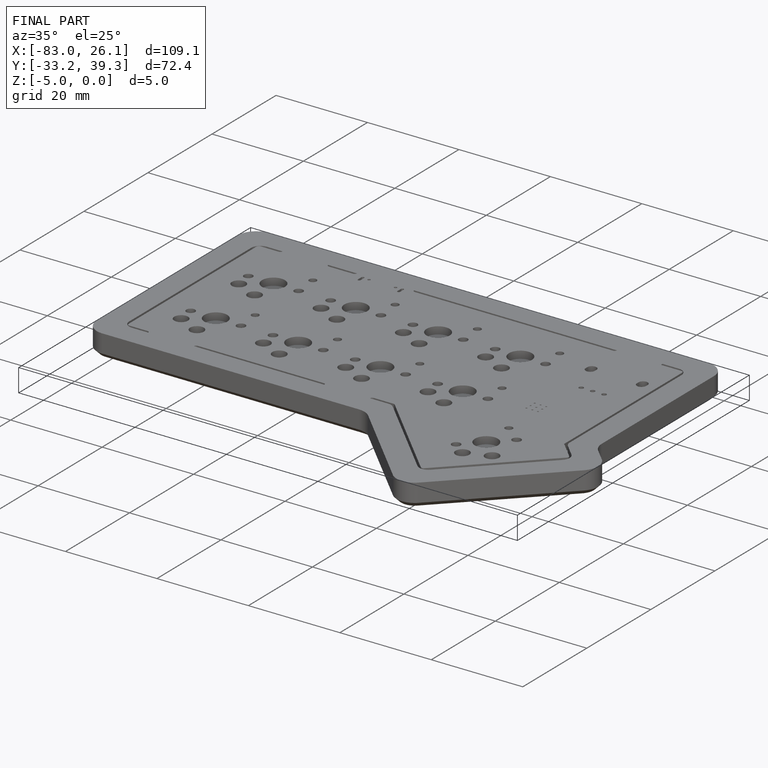
[diagram: finished part — iso view with bounding-box wireframe]
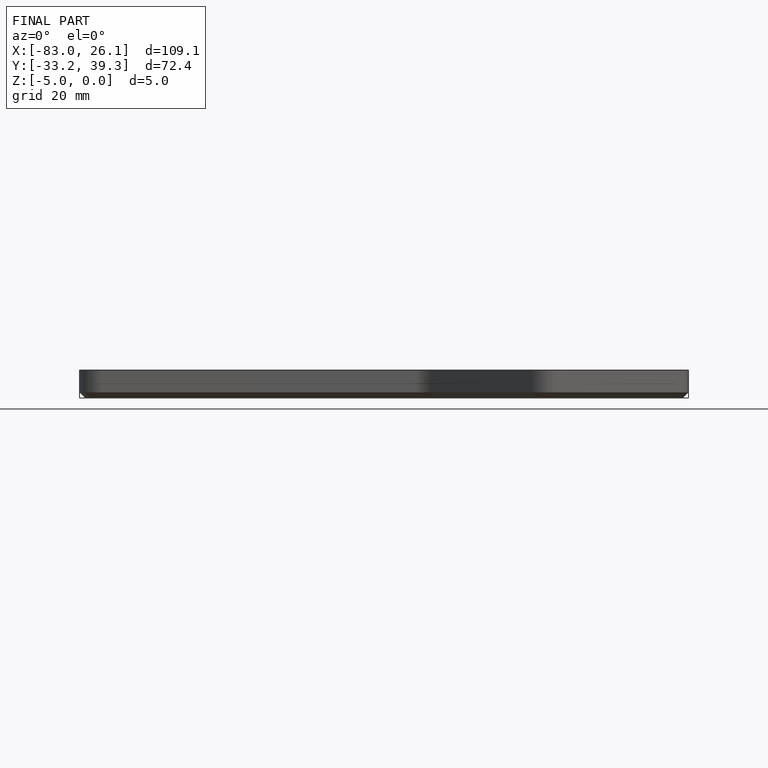
[diagram: finished part — front view with bounding-box wireframe]
